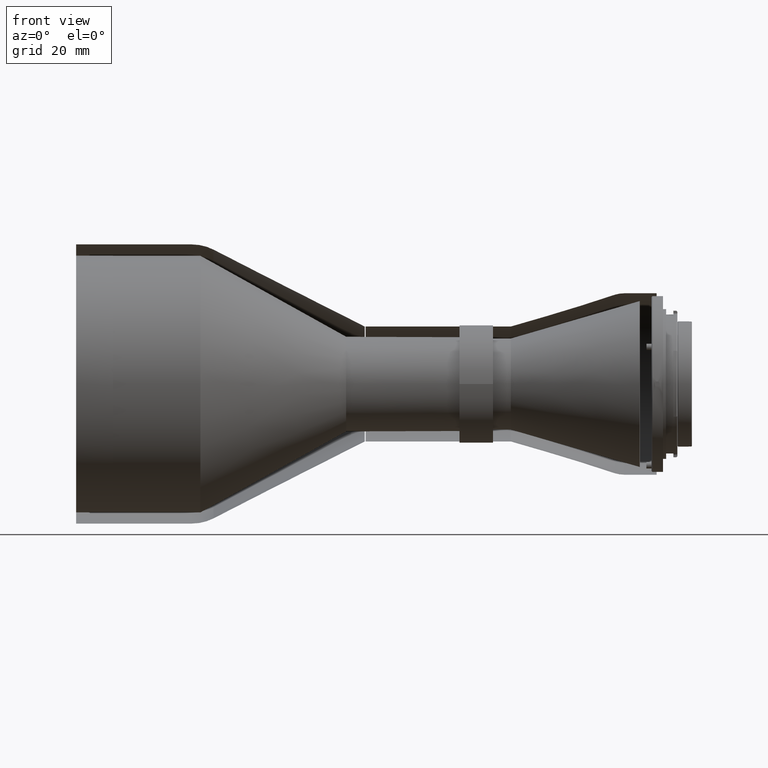
[diagram: clean part render]
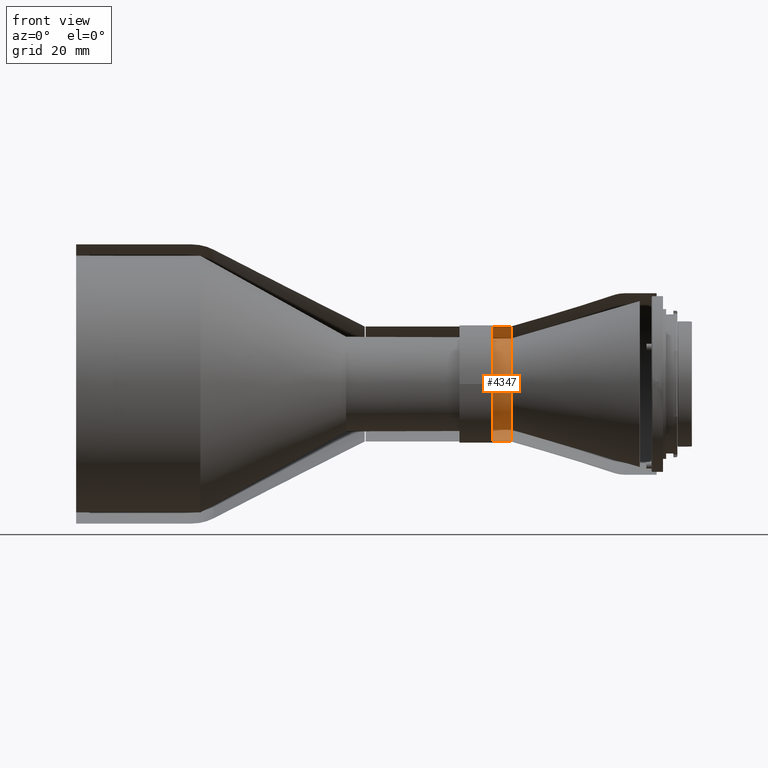
[diagram: same view with one face highlighted and labeled with its STEP entity id]
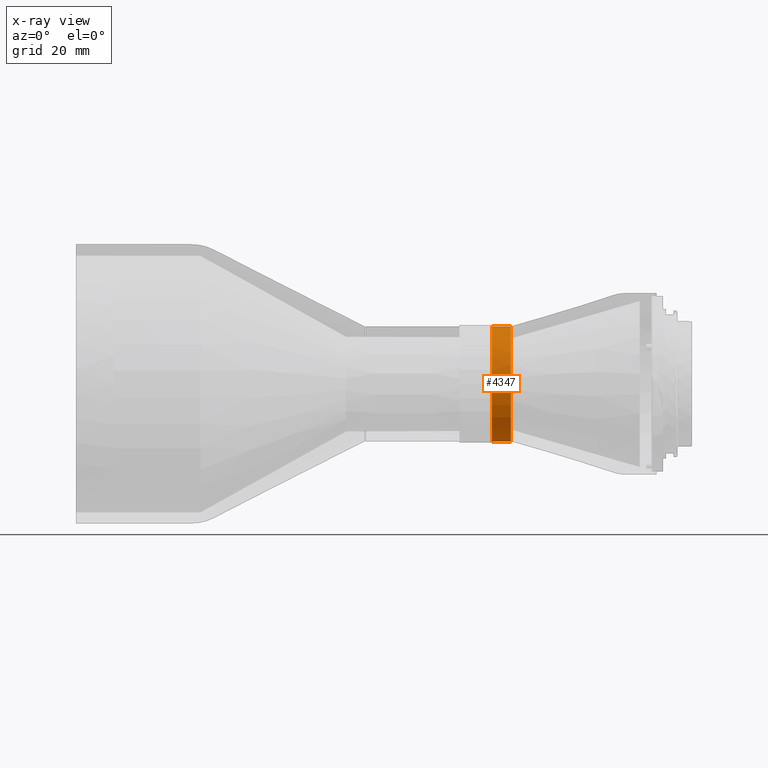
[diagram: x-ray of the same camera — body ghosted, the highlighted face saturated]
A machine part, front view. The second image highlights one B-rep face of the part: STEP entity #4347.
The next image is the same camera in x-ray: the body ghosted, the highlighted face saturated — about 0% of this face is hidden behind the body in this view.
In plain terms, the highlighted cylindrical surface (partial cylindrical patch) has radius 18 mm, axis along (1, 0, 0).
Its self-contained STEP definition (entity closure, byte-faithful):
#411 = CARTESIAN_POINT ( 'NONE',  ( 106.0747024804647936, -17.99999999999790035, -164.1114151907499945 ) ) ;
#443 = AXIS2_PLACEMENT_3D ( 'NONE', #2044, #2612, #8364 ) ;
#484 = CARTESIAN_POINT ( 'NONE',  ( 106.0747024809898420, -10.97981625315980381, -149.7994779298931860 ) ) ;
#872 = CARTESIAN_POINT ( 'NONE',  ( 106.0747024810587220, -14.31193726055494508, -175.0912314448695213 ) ) ;
#897 = CARTESIAN_POINT ( 'NONE',  ( 112.0747024753749344, -3.951219512032686065, -146.5504395818997807 ) ) ;
#943 = CARTESIAN_POINT ( 'NONE',  ( 112.0747024753026011, -6.129307637879019176E-14, -182.1114151905340179 ) ) ;
#993 = CARTESIAN_POINT ( 'NONE',  ( 112.0747024755901293, -6.088008446775458715, -147.0312170929106514 ) ) ;
#1001 = CARTESIAN_POINT ( 'NONE',  ( 106.0747024807093908, -1.788698904734819957E-13, -182.1114151909970076 ) ) ;
#1038 = CARTESIAN_POINT ( 'NONE',  ( 112.0747024755958279, -15.92749635984384149, -155.4447045332989887 ) ) ;
#1047 = CARTESIAN_POINT ( 'NONE',  ( 109.0747024800000133, 2.588449845256444987E-28, -146.1114151910003898 ) ) ;
#1286 = CARTESIAN_POINT ( 'NONE',  ( 112.0747024755873440, -1.327886653982478959, -146.1114151923466977 ) ) ;
#1319 = CARTESIAN_POINT ( 'NONE',  ( 106.0747024809511032, -17.08066988244641848, -158.3115333399736642 ) ) ;
#1525 = ORIENTED_EDGE ( 'NONE', *, *, #6789, .F. ) ;
#1559 = CARTESIAN_POINT ( 'NONE',  ( 112.0747024755934405, -11.78419728704189851, -150.3299164257116729 ) ) ;
#1649 = CARTESIAN_POINT ( 'NONE',  ( 112.0747024755884240, -4.379773274212332090, -181.7072840238548110 ) ) ;
#1888 = CARTESIAN_POINT ( 'NONE',  ( 106.0747024809769385, -13.56096261168731409, -152.2165336798869362 ) ) ;
#1923 = EDGE_CURVE ( 'NONE', #2661, #4059, #6761, .T. ) ;
#1922 = VERTEX_POINT ( 'NONE', #1001 ) ;
#2044 = CARTESIAN_POINT ( 'NONE',  ( 109.0747024800000133, -8.881784197001888461E-14, -164.1114151909979739 ) ) ;
#2152 = ORIENTED_EDGE ( 'NONE', *, *, #9030, .T. ) ;
#2159 = CARTESIAN_POINT ( 'NONE',  ( 106.0747024810243033, -2.356165357930668502, -146.2274447726306335 ) ) ;
#2312 = CARTESIAN_POINT ( 'NONE',  ( 112.0747024755969363, -18.13177530729711151, -163.9223698991795573 ) ) ;
#2612 = DIRECTION ( 'NONE',  ( 1.000000000000000000, 0.000000000000000000, 0.000000000000000000 ) ) ;
#2650 = CARTESIAN_POINT ( 'NONE',  ( 109.0747024800000133, -1.798400481785029766E-13, -182.1114151909955865 ) ) ;
#2661 = VERTEX_POINT ( 'NONE', #5111 ) ;
#2695 = LINE ( 'NONE', #2650, #5199 ) ;
#2745 = B_SPLINE_CURVE_WITH_KNOTS ( 'NONE', 3,
 ( #4870, #7745, #1286, #2786 ),
 .UNSPECIFIED., .F., .F.,
 ( 4, 4 ),
 ( 0.4817453681144958644, 0.5182546318850694833 ),
 .UNSPECIFIED. ) ;
#2786 = CARTESIAN_POINT ( 'NONE',  ( 112.0747024753737833, 1.820618323873884625E-14, -146.1114151916726485 ) ) ;
#2955 = CARTESIAN_POINT ( 'NONE',  ( 106.0747024810286234, -1.178097243543515971, -146.1114151908950589 ) ) ;
#2990 = CARTESIAN_POINT ( 'NONE',  ( 106.0747024812137340, -2.356165359436863671, -181.9953856091638897 ) ) ;
#3014 = CARTESIAN_POINT ( 'NONE',  ( 112.0747024755969079, -17.97191287696129791, -161.7015684200025305 ) ) ;
#3184 = CARTESIAN_POINT ( 'NONE',  ( 106.0747024809941479, -17.08066988267810160, -169.9112970413305277 ) ) ;
#3210 = CARTESIAN_POINT ( 'NONE',  ( 112.0747024755908967, -8.471570794990961772, -180.1435548542472702 ) ) ;
#3307 = ORIENTED_EDGE ( 'NONE', *, *, #3675, .T. ) ;
#3352 = CARTESIAN_POINT ( 'NONE',  ( 106.0747024810027597, -7.976721713534756120, -147.9324219026695744 ) ) ;
#3460 = CYLINDRICAL_SURFACE ( 'NONE', #443, 17.99999999999760192 ) ;
#3675 = EDGE_CURVE ( 'NONE', #8363, #2661, #8215, .T. ) ;
#3832 = CARTESIAN_POINT ( 'NONE',  ( 112.0747024755961689, -17.00458278389746170, -170.4075392575995807 ) ) ;
#3845 = VERTEX_POINT ( 'NONE', #5976 ) ;
#3932 = DIRECTION ( 'NONE',  ( 1.000000000000000000, 0.000000000000000000, 0.000000000000000000 ) ) ;
#4059 = VERTEX_POINT ( 'NONE', #4450 ) ;
#4118 = DIRECTION ( 'NONE',  ( 1.000000000000000000, 0.000000000000000000, 0.000000000000000000 ) ) ;
#4129 = B_SPLINE_CURVE_WITH_KNOTS ( 'NONE', 3,
 ( #943, #5188, #1649, #3210, #6088, #4626, #4438, #3832, #7502, #2312, #3014, #5988, #1038, #6705, #1559, #8113, #993, #897 ),
 .UNSPECIFIED., .F., .F.,
 ( 4, 2, 2, 2, 2, 2, 2, 2, 4 ),
 ( 0.000000000000000000, 0.06021817101431199692, 0.1204363420286239938, 0.1806545130429360047, 0.2408726840572479322, 0.3010908550715599152, 0.3613090260858718428, 0.4215271971001838813, 0.4817453681144958644 ),
 .UNSPECIFIED. ) ;
#4135 = CARTESIAN_POINT ( 'NONE',  ( 106.0747024809424914, -18.00000000001391243, -165.2895124358564090 ) ) ;
#4200 = CARTESIAN_POINT ( 'NONE',  ( 106.0747024809640067, -15.62096878207310802, -155.0907030556702182 ) ) ;
#4347 = ADVANCED_FACE ( 'NONE', ( #5495 ), #3460, .F. ) ;
#4393 = EDGE_LOOP ( 'NONE', ( #6386, #2152, #3307, #7005, #9284, #1525 ) ) ;
#4438 = CARTESIAN_POINT ( 'NONE',  ( 112.0747024755948900, -14.99855435218724331, -174.3016252605149816 ) ) ;
#4450 = CARTESIAN_POINT ( 'NONE',  ( 112.0747024753737833, 1.820618323873884625E-14, -146.1114151916726485 ) ) ;
#4458 = CARTESIAN_POINT ( 'NONE',  ( 106.0747024810716397, -13.56096261235005329, -176.0062967013488162 ) ) ;
#4553 = CARTESIAN_POINT ( 'NONE',  ( 106.0747024810328867, -15.62096878250504517, -173.1321273255717870 ) ) ;
#4626 = CARTESIAN_POINT ( 'NONE',  ( 112.0747024755940799, -13.63657215792434485, -176.0630223506279322 ) ) ;
#4770 = CARTESIAN_POINT ( 'NONE',  ( 106.0747024809597008, -16.17899328750546317, -156.1346934757939948 ) ) ;
#4870 = CARTESIAN_POINT ( 'NONE',  ( 112.0747024753749344, -3.951219512032686065, -146.5504395818997807 ) ) ;
#5111 = CARTESIAN_POINT ( 'NONE',  ( 106.0747024805164500, 3.218481672110164243E-09, -146.1113920455252071 ) ) ;
#5163 = CARTESIAN_POINT ( 'NONE',  ( 106.0747024811749526, -5.799881850567946806, -181.1920850735961324 ) ) ;
#5188 = CARTESIAN_POINT ( 'NONE',  ( 112.0747024755871450, -2.190208658263640196, -182.1114151896080102 ) ) ;
#5199 = VECTOR ( 'NONE', #4118, 1000.000000000000000 ) ;
#5356 = CARTESIAN_POINT ( 'NONE',  ( 106.0747024810199832, -16.17899328786627677, -172.0881369054632728 ) ) ;
#5495 = FACE_OUTER_BOUND ( 'NONE', #4393, .T. ) ;
#5608 = CARTESIAN_POINT ( 'NONE',  ( 112.0747024753026011, -6.129307637879019176E-14, -182.1114151905340179 ) ) ;
#5617 = CARTESIAN_POINT ( 'NONE',  ( 106.0747024804647936, -17.99999999999790035, -164.1114151907499945 ) ) ;
#5785 = B_SPLINE_CURVE_WITH_KNOTS ( 'NONE', 3,
 ( #6627, #5966, #2990, #7340, #5163, #8839, #5869, #8744, #7433, #4458, #872, #4553, #5356, #3184, #6868, #6063, #4135, #411 ),
 .UNSPECIFIED., .F., .F.,
 ( 4, 2, 2, 2, 2, 2, 2, 2, 4 ),
 ( 0.000000000000000000, 0.1249999999999999167, 0.2499999999999998335, 0.3749999999999998335, 0.4999999999999998890, 0.6249999999999998890, 0.7499999999999998890, 0.8750000000000000000, 1.000000000000000000 ),
 .UNSPECIFIED. ) ;
#5869 = CARTESIAN_POINT ( 'NONE',  ( 106.0747024811362280, -9.020712134789029335, -179.7323839733787167 ) ) ;
#5966 = CARTESIAN_POINT ( 'NONE',  ( 106.0747024812266517, -1.178097245106481950, -182.1114151909955865 ) ) ;
#5976 = CARTESIAN_POINT ( 'NONE',  ( 112.0747024753749344, -3.951219512032686065, -146.5504395818997807 ) ) ;
#5988 = CARTESIAN_POINT ( 'NONE',  ( 112.0747024755963395, -16.86961133446694916, -157.4621124199541669 ) ) ;
#6063 = CARTESIAN_POINT ( 'NONE',  ( 106.0747024809554091, -17.88397041819839473, -166.4675805501884156 ) ) ;
#6088 = CARTESIAN_POINT ( 'NONE',  ( 112.0747024755920336, -10.37260048535304868, -178.9844166731361952 ) ) ;
#6235 = CARTESIAN_POINT ( 'NONE',  ( 106.0747024810156631, -4.667086231826236720, -146.6871155142922589 ) ) ;
#6368 = CARTESIAN_POINT ( 'NONE',  ( 106.0747024809382140, -17.88397041812433130, -161.7552498312222440 ) ) ;
#6386 = ORIENTED_EDGE ( 'NONE', *, *, #6931, .F. ) ;
#6627 = CARTESIAN_POINT ( 'NONE',  ( 106.0747024807093908, -1.788698904734819957E-13, -182.1114151909970076 ) ) ;
#6705 = CARTESIAN_POINT ( 'NONE',  ( 112.0747024755943073, -13.38441543300577230, -151.8780821441912394 ) ) ;
#6761 = LINE ( 'NONE', #1047, #6953 ) ;
#6789 = EDGE_CURVE ( 'NONE', #8877, #3845, #4129, .T. ) ;
#6868 = CARTESIAN_POINT ( 'NONE',  ( 106.0747024809812160, -17.42429967639801802, -168.7785014239617567 ) ) ;
#6931 = EDGE_CURVE ( 'NONE', #1922, #8877, #2695, .T. ) ;
#6953 = VECTOR ( 'NONE', #3932, 1000.000000000000000 ) ;
#7005 = ORIENTED_EDGE ( 'NONE', *, *, #1923, .T. ) ;
#7072 = CARTESIAN_POINT ( 'NONE',  ( 106.0747024809984254, -9.020712133716200398, -148.4904464079942557 ) ) ;
#7116 = CARTESIAN_POINT ( 'NONE',  ( 106.0747024809467831, -17.42429967622433296, -159.4443289573740401 ) ) ;
#7340 = CARTESIAN_POINT ( 'NONE',  ( 106.0747024811878561, -4.667086233203862733, -181.5357148673316203 ) ) ;
#7433 = CARTESIAN_POINT ( 'NONE',  ( 106.0747024810974750, -11.89488151053775944, -177.6723778031841334 ) ) ;
#7465 = CARTESIAN_POINT ( 'NONE',  ( 106.0747024804647936, -17.99999999999790035, -164.1114151907499945 ) ) ;
#7502 = CARTESIAN_POINT ( 'NONE',  ( 112.0747024755965811, -17.64803913818955294, -168.2759954211587683 ) ) ;
#7641 = CARTESIAN_POINT ( 'NONE',  ( 106.0747024809855645, -11.89488150971197200, -150.5504525780835081 ) ) ;
#7745 = CARTESIAN_POINT ( 'NONE',  ( 112.0747024755881398, -2.655720337267630793, -146.2589522682686152 ) ) ;
#7864 = CARTESIAN_POINT ( 'NONE',  ( 106.0747024805164500, 3.218481672110164243E-09, -146.1113920455252071 ) ) ;
#8113 = CARTESIAN_POINT ( 'NONE',  ( 112.0747024755912946, -8.135457328389838594, -147.9061275361696062 ) ) ;
#8215 = B_SPLINE_CURVE_WITH_KNOTS ( 'NONE', 3,
 ( #5617, #8485, #6368, #7116, #1319, #4770, #4200, #8346, #1888, #7641, #484, #7072, #3352, #9234, #6235, #2159, #2955, #7864 ),
 .UNSPECIFIED., .F., .F.,
 ( 4, 2, 2, 2, 2, 2, 2, 2, 4 ),
 ( 0.000000000000000000, 0.04166666666879476066, 0.08333333333758952133, 0.1250000000063842820, 0.1666666666751790427, 0.2083333333439738033, 0.2500000000127685640, 0.2916666666815633246, 0.3333333333503580853 ),
 .UNSPECIFIED. ) ;
#8346 = CARTESIAN_POINT ( 'NONE',  ( 106.0747024809726184, -14.31193725997204602, -153.1315989363616552 ) ) ;
#8363 = VERTEX_POINT ( 'NONE', #7465 ) ;
#8364 = DIRECTION ( 'NONE',  ( 0.000000000000000000, 4.934324553890609968E-15, 1.000000000000000000 ) ) ;
#8485 = CARTESIAN_POINT ( 'NONE',  ( 106.0747024809338370, -17.99999999998147615, -162.9333179455973948 ) ) ;
#8538 = EDGE_CURVE ( 'NONE', #3845, #4059, #2745, .T. ) ;
#8744 = CARTESIAN_POINT ( 'NONE',  ( 106.0747024811104069, -10.97981625406879935, -178.4233524514016551 ) ) ;
#8839 = CARTESIAN_POINT ( 'NONE',  ( 106.0747024811491457, -7.976721714688206788, -180.2904084787543582 ) ) ;
#8877 = VERTEX_POINT ( 'NONE', #5608 ) ;
#9030 = EDGE_CURVE ( 'NONE', #1922, #8363, #5785, .T. ) ;
#9234 = CARTESIAN_POINT ( 'NONE',  ( 106.0747024810113572, -5.799881849262086497, -147.0307453079532252 ) ) ;
#9284 = ORIENTED_EDGE ( 'NONE', *, *, #8538, .F. ) ;